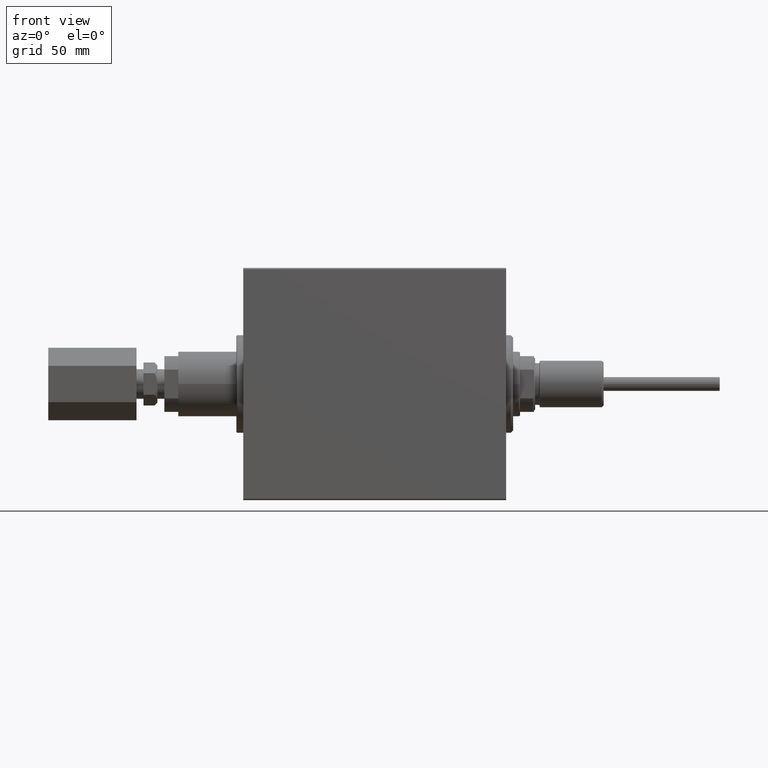
[diagram: clean part render]
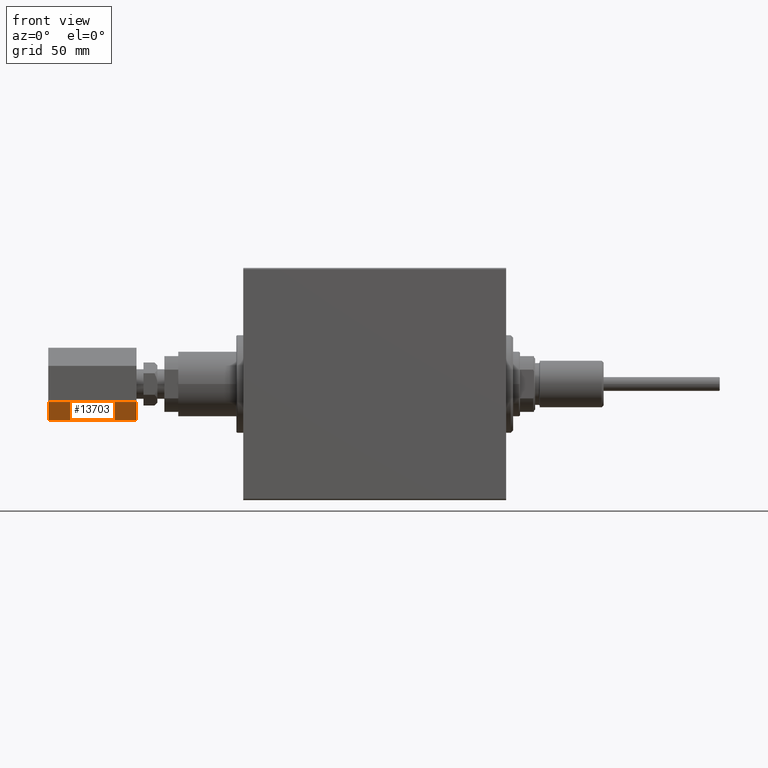
[diagram: same view with one face highlighted and labeled with its STEP entity id]
A machine part, front view. The second image highlights one B-rep face of the part: STEP entity #13703.
In plain terms, the highlighted planar face has unit normal (-0, 0.5, 0.866).
Its self-contained STEP definition (entity closure, byte-faithful):
#548 = LINE ( 'NONE', #22669, #39050 ) ;
#1960 = LINE ( 'NONE', #16647, #43052 ) ;
#2311 = ORIENTED_EDGE ( 'NONE', *, *, #10180, .F. ) ;
#3255 = EDGE_LOOP ( 'NONE', ( #10844, #22817, #2311, #31798 ) ) ;
#4338 = DIRECTION ( 'NONE',  ( 0.000000000000000000, -0.8660254037844388186, -0.4999999999999996669 ) ) ;
#5805 = EDGE_CURVE ( 'NONE', #6002, #22985, #548, .T. ) ;
#5820 = CARTESIAN_POINT ( 'NONE',  ( 84.00000000000000000, 7.794228634059951588, 13.50000000000000000 ) ) ;
#6002 = VERTEX_POINT ( 'NONE', #26989 ) ;
#6374 = DIRECTION ( 'NONE',  ( -1.000000000000000000, -0.000000000000000000, -0.000000000000000000 ) ) ;
#7039 = AXIS2_PLACEMENT_3D ( 'NONE', #7957, #4338, #19024 ) ;
#7957 = CARTESIAN_POINT ( 'NONE',  ( 84.00000000000000000, 15.58845726811989252, 0.000000000000000000 ) ) ;
#8707 = EDGE_CURVE ( 'NONE', #32633, #22985, #9604, .T. ) ;
#9604 = LINE ( 'NONE', #42525, #33721 ) ;
#10180 = EDGE_CURVE ( 'NONE', #46650, #32633, #1960, .T. ) ;
#10844 = ORIENTED_EDGE ( 'NONE', *, *, #5805, .T. ) ;
#11261 = VECTOR ( 'NONE', #6374, 1000.000000000000000 ) ;
#13703 = ADVANCED_FACE ( 'NONE', ( #22610 ), #15181, .F. ) ;
#15004 = DIRECTION ( 'NONE',  ( 0.000000000000000000, -0.4999999999999996669, 0.8660254037844388186 ) ) ;
#15181 = PLANE ( 'NONE',  #7039 ) ;
#16647 = CARTESIAN_POINT ( 'NONE',  ( 84.00000000000000000, 15.58845726811989252, 0.000000000000000000 ) ) ;
#17676 = CARTESIAN_POINT ( 'NONE',  ( 46.00000000000000711, 7.794228634059951588, 13.50000000000000000 ) ) ;
#19024 = DIRECTION ( 'NONE',  ( 0.000000000000000000, 0.4999999999999996669, -0.8660254037844388186 ) ) ;
#20634 = CARTESIAN_POINT ( 'NONE',  ( 84.00000000000000000, 15.58845726811989252, 0.000000000000000000 ) ) ;
#20816 = LINE ( 'NONE', #38826, #11261 ) ;
#22610 = FACE_OUTER_BOUND ( 'NONE', #3255, .T. ) ;
#22669 = CARTESIAN_POINT ( 'NONE',  ( 46.00000000000000711, 15.58845726811989252, 0.000000000000000000 ) ) ;
#22817 = ORIENTED_EDGE ( 'NONE', *, *, #8707, .F. ) ;
#22985 = VERTEX_POINT ( 'NONE', #17676 ) ;
#26989 = CARTESIAN_POINT ( 'NONE',  ( 46.00000000000000711, 15.58845726811989252, 0.000000000000000000 ) ) ;
#29974 = EDGE_CURVE ( 'NONE', #46650, #6002, #20816, .T. ) ;
#31215 = DIRECTION ( 'NONE',  ( -1.000000000000000000, -0.000000000000000000, -0.000000000000000000 ) ) ;
#31286 = DIRECTION ( 'NONE',  ( 0.000000000000000000, -0.4999999999999996669, 0.8660254037844388186 ) ) ;
#31798 = ORIENTED_EDGE ( 'NONE', *, *, #29974, .T. ) ;
#32633 = VERTEX_POINT ( 'NONE', #5820 ) ;
#33721 = VECTOR ( 'NONE', #31215, 1000.000000000000000 ) ;
#38826 = CARTESIAN_POINT ( 'NONE',  ( 84.00000000000000000, 15.58845726811989252, 0.000000000000000000 ) ) ;
#39050 = VECTOR ( 'NONE', #15004, 1000.000000000000000 ) ;
#42525 = CARTESIAN_POINT ( 'NONE',  ( 84.00000000000000000, 7.794228634059951588, 13.50000000000000000 ) ) ;
#43052 = VECTOR ( 'NONE', #31286, 1000.000000000000000 ) ;
#46650 = VERTEX_POINT ( 'NONE', #20634 ) ;